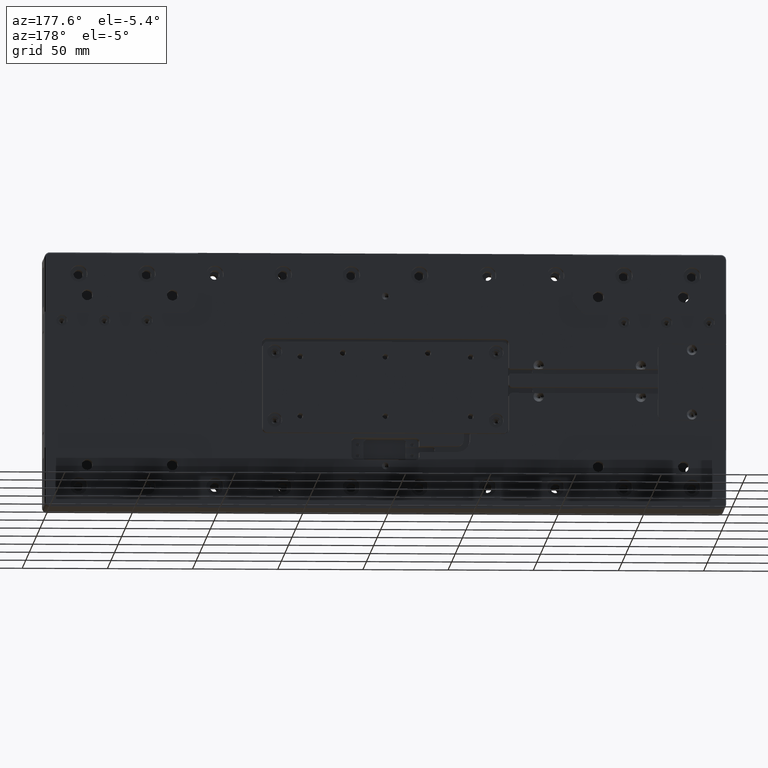
[diagram: clean part render]
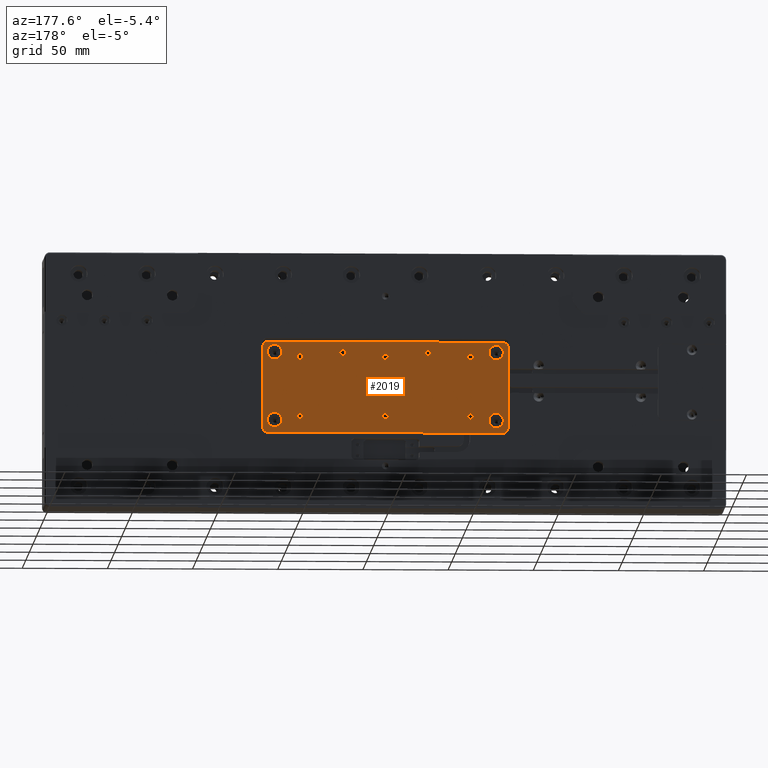
[diagram: same view with one face highlighted and labeled with its STEP entity id]
A machine part, auxiliary view. The second image highlights one B-rep face of the part: STEP entity #2019.
In plain terms, the highlighted planar face has unit normal (0, 1, 0).
Its self-contained STEP definition (entity closure, byte-faithful):
#24 = DIRECTION ( 'NONE',  ( 0.000000000000000000, 0.000000000000000000, -1.000000000000000000 ) ) ;
#60 = LINE ( 'NONE', #12964, #7749 ) ;
#64 = DIRECTION ( 'NONE',  ( 0.000000000000000000, 1.000000000000000000, 0.000000000000000000 ) ) ;
#140 = EDGE_LOOP ( 'NONE', ( #22201 ) ) ;
#550 = CIRCLE ( 'NONE', #8281, 1.649999999999998579 ) ;
#882 = EDGE_CURVE ( 'NONE', #18360, #18360, #25129, .T. ) ;
#1062 = DIRECTION ( 'NONE',  ( 0.000000000000000000, -1.000000000000000000, 0.000000000000000000 ) ) ;
#1114 = DIRECTION ( 'NONE',  ( 0.000000000000000000, 1.000000000000000000, 0.000000000000000000 ) ) ;
#1568 = CARTESIAN_POINT ( 'NONE',  ( -69.00000000000000000, 14.50000000000000000, -30.50000000000000000 ) ) ;
#1635 = ORIENTED_EDGE ( 'NONE', *, *, #7740, .T. ) ;
#1764 = CIRCLE ( 'NONE', #17873, 1.650000000000000355 ) ;
#1835 = ORIENTED_EDGE ( 'NONE', *, *, #38503, .T. ) ;
#2019 = ADVANCED_FACE ( 'NONE', ( #12006, #2924, #24137, #8401, #17875, #14854, #21327, #18093, #15237, #33420, #36861, #27562, #39511 ), #9186, .T. ) ;
#2539 = CARTESIAN_POINT ( 'NONE',  ( 0.000000000000000000, 14.50000000000000000, 0.000000000000000000 ) ) ;
#2653 = EDGE_CURVE ( 'NONE', #16808, #30916, #19038, .T. ) ;
#2787 = CIRCLE ( 'NONE', #34388, 2.999999999999999112 ) ;
#2924 = FACE_BOUND ( 'NONE', #3874, .T. ) ;
#3175 = VERTEX_POINT ( 'NONE', #18511 ) ;
#3363 = CARTESIAN_POINT ( 'NONE',  ( 50.00000000000000000, 14.50000000000000000, -20.75000000000000000 ) ) ;
#3423 = EDGE_CURVE ( 'NONE', #35121, #35121, #7050, .T. ) ;
#3490 = EDGE_LOOP ( 'NONE', ( #1635 ) ) ;
#3533 = CARTESIAN_POINT ( 'NONE',  ( 65.00000000000000000, 14.50000000000000178, -23.00000000000000000 ) ) ;
#3725 = AXIS2_PLACEMENT_3D ( 'NONE', #3363, #9618, #31620 ) ;
#3751 = CARTESIAN_POINT ( 'NONE',  ( -50.00000000000000000, 14.50000000000000000, -20.75000000000000000 ) ) ;
#3874 = EDGE_LOOP ( 'NONE', ( #39453 ) ) ;
#4047 = CARTESIAN_POINT ( 'NONE',  ( 0.000000000000000000, 14.50000000000000000, 14.25000000000000000 ) ) ;
#4105 = CARTESIAN_POINT ( 'NONE',  ( 0.000000000000000000, 14.50000000000000000, -20.75000000000000000 ) ) ;
#4195 = DIRECTION ( 'NONE',  ( 0.000000000000000000, 0.000000000000000000, -1.000000000000000000 ) ) ;
#4638 = DIRECTION ( 'NONE',  ( -0.000000000000000000, -1.000000000000000000, -0.000000000000000000 ) ) ;
#4662 = VERTEX_POINT ( 'NONE', #11288 ) ;
#4848 = DIRECTION ( 'NONE',  ( -0.000000000000000000, -1.000000000000000000, -0.000000000000000000 ) ) ;
#4997 = EDGE_CURVE ( 'NONE', #30916, #4662, #9155, .T. ) ;
#5766 = ORIENTED_EDGE ( 'NONE', *, *, #25313, .T. ) ;
#5954 = DIRECTION ( 'NONE',  ( 0.000000000000000000, -0.000000000000000000, 1.000000000000000000 ) ) ;
#6293 = AXIS2_PLACEMENT_3D ( 'NONE', #14142, #4848, #20799 ) ;
#6415 = CIRCLE ( 'NONE', #18025, 2.999999999999999112 ) ;
#6588 = VERTEX_POINT ( 'NONE', #24780 ) ;
#6667 = CARTESIAN_POINT ( 'NONE',  ( 25.00000000000000000, 14.50000000000000000, 16.57000000000000028 ) ) ;
#6959 = DIRECTION ( 'NONE',  ( 0.000000000000000000, -1.000000000000000000, 0.000000000000000000 ) ) ;
#7050 = CIRCLE ( 'NONE', #19318, 4.250000000000000000 ) ;
#7564 = CIRCLE ( 'NONE', #39842, 4.250000000000000000 ) ;
#7577 = VERTEX_POINT ( 'NONE', #19921 ) ;
#7740 = EDGE_CURVE ( 'NONE', #3175, #3175, #32723, .T. ) ;
#7749 = VECTOR ( 'NONE', #24696, 1000.000000000000000 ) ;
#7818 = CARTESIAN_POINT ( 'NONE',  ( 69.00000000000000000, 14.50000000000000000, -30.50000000000000000 ) ) ;
#7868 = VECTOR ( 'NONE', #19817, 1000.000000000000000 ) ;
#8281 = AXIS2_PLACEMENT_3D ( 'NONE', #3751, #6959, #25540 ) ;
#8319 = DIRECTION ( 'NONE',  ( 0.000000000000000000, 0.000000000000000000, -1.000000000000000000 ) ) ;
#8401 = FACE_BOUND ( 'NONE', #11813, .T. ) ;
#8619 = VERTEX_POINT ( 'NONE', #1568 ) ;
#8627 = AXIS2_PLACEMENT_3D ( 'NONE', #2539, #30575, #5954 ) ;
#8870 = VERTEX_POINT ( 'NONE', #35327 ) ;
#9155 = LINE ( 'NONE', #18440, #22847 ) ;
#9186 = PLANE ( 'NONE',  #8627 ) ;
#9374 = ORIENTED_EDGE ( 'NONE', *, *, #17531, .T. ) ;
#9618 = DIRECTION ( 'NONE',  ( 0.000000000000000000, -1.000000000000000000, 0.000000000000000000 ) ) ;
#9866 = CARTESIAN_POINT ( 'NONE',  ( 65.00000000000000000, 14.50000000000000178, -18.75000000000000000 ) ) ;
#10102 = ORIENTED_EDGE ( 'NONE', *, *, #20598, .T. ) ;
#10111 = AXIS2_PLACEMENT_3D ( 'NONE', #38808, #32325, #16985 ) ;
#10771 = AXIS2_PLACEMENT_3D ( 'NONE', #38636, #35605, #8319 ) ;
#10861 = EDGE_CURVE ( 'NONE', #7577, #7577, #35847, .T. ) ;
#11199 = ORIENTED_EDGE ( 'NONE', *, *, #882, .T. ) ;
#11288 = CARTESIAN_POINT ( 'NONE',  ( 72.00000000000001421, 14.50000000000000000, -27.50000000000000000 ) ) ;
#11663 = VERTEX_POINT ( 'NONE', #36311 ) ;
#11813 = EDGE_LOOP ( 'NONE', ( #37625 ) ) ;
#12006 = FACE_BOUND ( 'NONE', #3490, .T. ) ;
#12035 = CIRCLE ( 'NONE', #10111, 1.650000000000000355 ) ;
#12040 = VERTEX_POINT ( 'NONE', #12592 ) ;
#12592 = CARTESIAN_POINT ( 'NONE',  ( -72.00000000000001421, 14.50000000000000000, 20.00000000000000000 ) ) ;
#12880 = VECTOR ( 'NONE', #38025, 1000.000000000000000 ) ;
#12929 = DIRECTION ( 'NONE',  ( 0.000000000000000000, -1.000000000000000000, 0.000000000000000000 ) ) ;
#12964 = CARTESIAN_POINT ( 'NONE',  ( 0.000000000000000000, 14.50000000000000000, 23.00000000000000000 ) ) ;
#13044 = EDGE_CURVE ( 'NONE', #12040, #28858, #23102, .T. ) ;
#13213 = DIRECTION ( 'NONE',  ( -0.000000000000000000, -1.000000000000000000, -0.000000000000000000 ) ) ;
#13450 = EDGE_LOOP ( 'NONE', ( #21618 ) ) ;
#13633 = EDGE_CURVE ( 'NONE', #27161, #27161, #12035, .T. ) ;
#13721 = DIRECTION ( 'NONE',  ( 0.000000000000000000, 0.000000000000000000, 1.000000000000000000 ) ) ;
#14108 = CARTESIAN_POINT ( 'NONE',  ( 65.00000000000000000, 14.50000000000000178, 21.25000000000000000 ) ) ;
#14142 = CARTESIAN_POINT ( 'NONE',  ( -65.00000000000000000, 14.50000000000000178, 17.00000000000000000 ) ) ;
#14153 = CARTESIAN_POINT ( 'NONE',  ( 0.000000000000000000, 14.50000000000000000, -30.50000000000000000 ) ) ;
#14315 = EDGE_CURVE ( 'NONE', #15437, #15437, #26925, .T. ) ;
#14382 = DIRECTION ( 'NONE',  ( 0.000000000000000000, 0.000000000000000000, 1.000000000000000000 ) ) ;
#14854 = FACE_BOUND ( 'NONE', #140, .T. ) ;
#14984 = CARTESIAN_POINT ( 'NONE',  ( -72.00000000000001421, 14.50000000000000000, -27.50000000000000000 ) ) ;
#14991 = ORIENTED_EDGE ( 'NONE', *, *, #14315, .T. ) ;
#15237 = FACE_BOUND ( 'NONE', #29963, .T. ) ;
#15437 = VERTEX_POINT ( 'NONE', #27762 ) ;
#16217 = DIRECTION ( 'NONE',  ( 0.000000000000000000, 0.000000000000000000, 1.000000000000000000 ) ) ;
#16372 = DIRECTION ( 'NONE',  ( 0.000000000000000000, -1.000000000000000000, 0.000000000000000000 ) ) ;
#16380 = CARTESIAN_POINT ( 'NONE',  ( -69.00000000000000000, 14.50000000000000000, 23.00000000000000000 ) ) ;
#16405 = ORIENTED_EDGE ( 'NONE', *, *, #23125, .T. ) ;
#16456 = DIRECTION ( 'NONE',  ( 0.000000000000000000, 0.000000000000000000, 1.000000000000000000 ) ) ;
#16494 = CARTESIAN_POINT ( 'NONE',  ( -65.00000000000000000, 14.50000000000000178, 21.25000000000000000 ) ) ;
#16808 = VERTEX_POINT ( 'NONE', #21971 ) ;
#16822 = ORIENTED_EDGE ( 'NONE', *, *, #29060, .T. ) ;
#16838 = CARTESIAN_POINT ( 'NONE',  ( 69.00000000000000000, 14.50000000000000000, -27.50000000000000000 ) ) ;
#16960 = EDGE_CURVE ( 'NONE', #8619, #39570, #6415, .T. ) ;
#16985 = DIRECTION ( 'NONE',  ( 0.000000000000000000, 0.000000000000000000, -1.000000000000000000 ) ) ;
#17384 = ORIENTED_EDGE ( 'NONE', *, *, #17498, .T. ) ;
#17498 = EDGE_CURVE ( 'NONE', #28858, #16808, #60, .T. ) ;
#17531 = EDGE_CURVE ( 'NONE', #39570, #12040, #28517, .T. ) ;
#17873 = AXIS2_PLACEMENT_3D ( 'NONE', #4047, #16372, #24 ) ;
#17875 = FACE_BOUND ( 'NONE', #24029, .T. ) ;
#17972 = ORIENTED_EDGE ( 'NONE', *, *, #22407, .T. ) ;
#17985 = EDGE_CURVE ( 'NONE', #39199, #39199, #7564, .T. ) ;
#18025 = AXIS2_PLACEMENT_3D ( 'NONE', #26392, #38717, #20317 ) ;
#18049 = AXIS2_PLACEMENT_3D ( 'NONE', #4105, #1062, #31946 ) ;
#18093 = FACE_BOUND ( 'NONE', #32290, .T. ) ;
#18360 = VERTEX_POINT ( 'NONE', #21601 ) ;
#18440 = CARTESIAN_POINT ( 'NONE',  ( 72.00000000000001421, 14.50000000000000000, 0.000000000000000000 ) ) ;
#18472 = ORIENTED_EDGE ( 'NONE', *, *, #2653, .T. ) ;
#18511 = CARTESIAN_POINT ( 'NONE',  ( -25.00000000000000000, 14.50000000000000000, 14.82000000000000206 ) ) ;
#18982 = EDGE_LOOP ( 'NONE', ( #17972 ) ) ;
#19038 = CIRCLE ( 'NONE', #29356, 2.999999999999999112 ) ;
#19117 = CIRCLE ( 'NONE', #25578, 4.250000000000000000 ) ;
#19318 = AXIS2_PLACEMENT_3D ( 'NONE', #3533, #13213, #16456 ) ;
#19324 = CARTESIAN_POINT ( 'NONE',  ( 72.00000000000001421, 14.50000000000000000, 20.00000000000000000 ) ) ;
#19370 = ORIENTED_EDGE ( 'NONE', *, *, #13044, .T. ) ;
#19617 = LINE ( 'NONE', #14153, #7868 ) ;
#19747 = DIRECTION ( 'NONE',  ( 0.000000000000000000, -1.000000000000000000, 0.000000000000000000 ) ) ;
#19817 = DIRECTION ( 'NONE',  ( -1.000000000000000000, -0.000000000000000000, 0.000000000000000000 ) ) ;
#19921 = CARTESIAN_POINT ( 'NONE',  ( 25.00000000000000000, 14.50000000000000000, 14.82000000000000206 ) ) ;
#20317 = DIRECTION ( 'NONE',  ( 0.000000000000000000, 0.000000000000000000, 1.000000000000000000 ) ) ;
#20331 = DIRECTION ( 'NONE',  ( 0.000000000000000000, 0.000000000000000000, 1.000000000000000000 ) ) ;
#20474 = ORIENTED_EDGE ( 'NONE', *, *, #4997, .T. ) ;
#20598 = EDGE_CURVE ( 'NONE', #8870, #8870, #28372, .T. ) ;
#20799 = DIRECTION ( 'NONE',  ( 0.000000000000000000, 0.000000000000000000, 1.000000000000000000 ) ) ;
#21121 = CARTESIAN_POINT ( 'NONE',  ( 65.00000000000000000, 14.50000000000000178, 17.00000000000000000 ) ) ;
#21327 = FACE_BOUND ( 'NONE', #13450, .T. ) ;
#21601 = CARTESIAN_POINT ( 'NONE',  ( 50.00000000000000000, 14.50000000000000000, 12.59999999999999964 ) ) ;
#21618 = ORIENTED_EDGE ( 'NONE', *, *, #13633, .T. ) ;
#21971 = CARTESIAN_POINT ( 'NONE',  ( 68.99999999156000285, 14.50000000000000000, 23.00000000000000000 ) ) ;
#22201 = ORIENTED_EDGE ( 'NONE', *, *, #17985, .T. ) ;
#22332 = CARTESIAN_POINT ( 'NONE',  ( -69.00000000000000000, 14.50000000000000000, 20.00000000000000000 ) ) ;
#22407 = EDGE_CURVE ( 'NONE', #39357, #39357, #19117, .T. ) ;
#22847 = VECTOR ( 'NONE', #33794, 1000.000000000000000 ) ;
#23102 = CIRCLE ( 'NONE', #35375, 2.999999999999999112 ) ;
#23125 = EDGE_CURVE ( 'NONE', #11663, #11663, #1764, .T. ) ;
#23668 = DIRECTION ( 'NONE',  ( 0.000000000000000000, 1.000000000000000000, 0.000000000000000000 ) ) ;
#23828 = AXIS2_PLACEMENT_3D ( 'NONE', #26414, #19747, #4195 ) ;
#23932 = CARTESIAN_POINT ( 'NONE',  ( -50.00000000000000000, 14.50000000000000000, 12.59999999999999964 ) ) ;
#24029 = EDGE_LOOP ( 'NONE', ( #16822 ) ) ;
#24137 = FACE_BOUND ( 'NONE', #18982, .T. ) ;
#24696 = DIRECTION ( 'NONE',  ( 1.000000000000000000, 0.000000000000000000, -0.000000000000000000 ) ) ;
#24780 = CARTESIAN_POINT ( 'NONE',  ( -50.00000000000000000, 14.50000000000000000, -22.39999999999999858 ) ) ;
#24844 = DIRECTION ( 'NONE',  ( 0.000000000000000000, 0.000000000000000000, -1.000000000000000000 ) ) ;
#25017 = VERTEX_POINT ( 'NONE', #7818 ) ;
#25129 = CIRCLE ( 'NONE', #23828, 1.650000000000000355 ) ;
#25313 = EDGE_CURVE ( 'NONE', #6588, #6588, #550, .T. ) ;
#25540 = DIRECTION ( 'NONE',  ( 0.000000000000000000, 0.000000000000000000, -1.000000000000000000 ) ) ;
#25578 = AXIS2_PLACEMENT_3D ( 'NONE', #21121, #38931, #20331 ) ;
#25695 = CIRCLE ( 'NONE', #6293, 4.250000000000000000 ) ;
#26392 = CARTESIAN_POINT ( 'NONE',  ( -69.00000000000000000, 14.50000000000000000, -27.50000000000000000 ) ) ;
#26414 = CARTESIAN_POINT ( 'NONE',  ( 50.00000000000000000, 14.50000000000000000, 14.25000000000000000 ) ) ;
#26925 = CIRCLE ( 'NONE', #3725, 1.649999999999998579 ) ;
#27161 = VERTEX_POINT ( 'NONE', #23932 ) ;
#27562 = FACE_BOUND ( 'NONE', #38956, .T. ) ;
#27762 = CARTESIAN_POINT ( 'NONE',  ( 50.00000000000000000, 14.50000000000000000, -22.39999999999999858 ) ) ;
#28372 = CIRCLE ( 'NONE', #18049, 1.649999999999998579 ) ;
#28517 = LINE ( 'NONE', #29117, #12880 ) ;
#28858 = VERTEX_POINT ( 'NONE', #16380 ) ;
#29060 = EDGE_CURVE ( 'NONE', #31828, #31828, #25695, .T. ) ;
#29117 = CARTESIAN_POINT ( 'NONE',  ( -72.00000000000001421, 14.50000000000000000, 0.000000000000000000 ) ) ;
#29356 = AXIS2_PLACEMENT_3D ( 'NONE', #31333, #64, #16217 ) ;
#29963 = EDGE_LOOP ( 'NONE', ( #11199 ) ) ;
#30276 = CARTESIAN_POINT ( 'NONE',  ( -65.00000000000000000, 14.50000000000000178, -18.75000000000000000 ) ) ;
#30564 = EDGE_LOOP ( 'NONE', ( #5766 ) ) ;
#30575 = DIRECTION ( 'NONE',  ( 0.000000000000000000, 1.000000000000000000, 0.000000000000000000 ) ) ;
#30916 = VERTEX_POINT ( 'NONE', #19324 ) ;
#31281 = ORIENTED_EDGE ( 'NONE', *, *, #16960, .T. ) ;
#31302 = EDGE_LOOP ( 'NONE', ( #10102 ) ) ;
#31333 = CARTESIAN_POINT ( 'NONE',  ( 69.00000000000000000, 14.50000000000000000, 20.00000000000000000 ) ) ;
#31620 = DIRECTION ( 'NONE',  ( 0.000000000000000000, 0.000000000000000000, -1.000000000000000000 ) ) ;
#31828 = VERTEX_POINT ( 'NONE', #16494 ) ;
#31946 = DIRECTION ( 'NONE',  ( 0.000000000000000000, 0.000000000000000000, -1.000000000000000000 ) ) ;
#32235 = EDGE_LOOP ( 'NONE', ( #20474, #33372, #1835, #31281, #9374, #19370, #17384, #18472 ) ) ;
#32290 = EDGE_LOOP ( 'NONE', ( #16405 ) ) ;
#32325 = DIRECTION ( 'NONE',  ( 0.000000000000000000, -1.000000000000000000, 0.000000000000000000 ) ) ;
#32723 = CIRCLE ( 'NONE', #10771, 1.749999999999999778 ) ;
#33372 = ORIENTED_EDGE ( 'NONE', *, *, #34758, .T. ) ;
#33420 = FACE_BOUND ( 'NONE', #30564, .T. ) ;
#33794 = DIRECTION ( 'NONE',  ( -0.000000000000000000, 0.000000000000000000, -1.000000000000000000 ) ) ;
#33907 = AXIS2_PLACEMENT_3D ( 'NONE', #6667, #12929, #24844 ) ;
#34388 = AXIS2_PLACEMENT_3D ( 'NONE', #16838, #23668, #14382 ) ;
#34644 = DIRECTION ( 'NONE',  ( 0.000000000000000000, 0.000000000000000000, 1.000000000000000000 ) ) ;
#34758 = EDGE_CURVE ( 'NONE', #4662, #25017, #2787, .T. ) ;
#35121 = VERTEX_POINT ( 'NONE', #9866 ) ;
#35327 = CARTESIAN_POINT ( 'NONE',  ( 0.000000000000000000, 14.50000000000000000, -22.39999999999999858 ) ) ;
#35375 = AXIS2_PLACEMENT_3D ( 'NONE', #22332, #1114, #34644 ) ;
#35605 = DIRECTION ( 'NONE',  ( 0.000000000000000000, -1.000000000000000000, 0.000000000000000000 ) ) ;
#35847 = CIRCLE ( 'NONE', #33907, 1.749999999999999778 ) ;
#36311 = CARTESIAN_POINT ( 'NONE',  ( 0.000000000000000000, 14.50000000000000000, 12.59999999999999964 ) ) ;
#36861 = FACE_BOUND ( 'NONE', #31302, .T. ) ;
#37625 = ORIENTED_EDGE ( 'NONE', *, *, #3423, .T. ) ;
#37971 = CARTESIAN_POINT ( 'NONE',  ( -65.00000000000000000, 14.50000000000000178, -23.00000000000000000 ) ) ;
#38025 = DIRECTION ( 'NONE',  ( 0.000000000000000000, -0.000000000000000000, 1.000000000000000000 ) ) ;
#38503 = EDGE_CURVE ( 'NONE', #25017, #8619, #19617, .T. ) ;
#38636 = CARTESIAN_POINT ( 'NONE',  ( -25.00000000000000000, 14.50000000000000000, 16.57000000000000028 ) ) ;
#38717 = DIRECTION ( 'NONE',  ( 0.000000000000000000, 1.000000000000000000, 0.000000000000000000 ) ) ;
#38808 = CARTESIAN_POINT ( 'NONE',  ( -50.00000000000000000, 14.50000000000000000, 14.25000000000000000 ) ) ;
#38931 = DIRECTION ( 'NONE',  ( -0.000000000000000000, -1.000000000000000000, -0.000000000000000000 ) ) ;
#38956 = EDGE_LOOP ( 'NONE', ( #14991 ) ) ;
#39199 = VERTEX_POINT ( 'NONE', #30276 ) ;
#39357 = VERTEX_POINT ( 'NONE', #14108 ) ;
#39453 = ORIENTED_EDGE ( 'NONE', *, *, #10861, .T. ) ;
#39511 = FACE_OUTER_BOUND ( 'NONE', #32235, .T. ) ;
#39570 = VERTEX_POINT ( 'NONE', #14984 ) ;
#39842 = AXIS2_PLACEMENT_3D ( 'NONE', #37971, #4638, #13721 ) ;